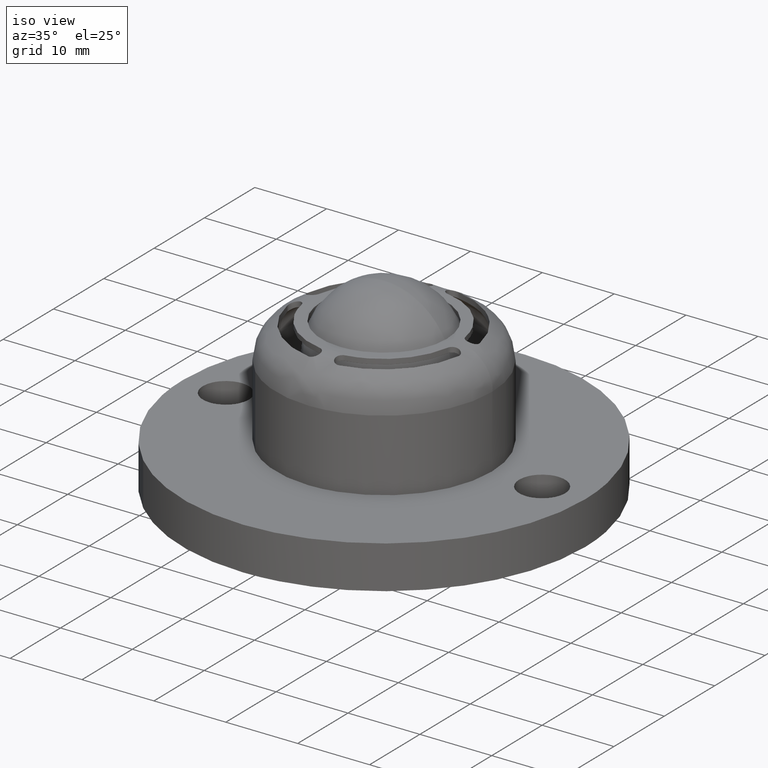
[diagram: clean part render]
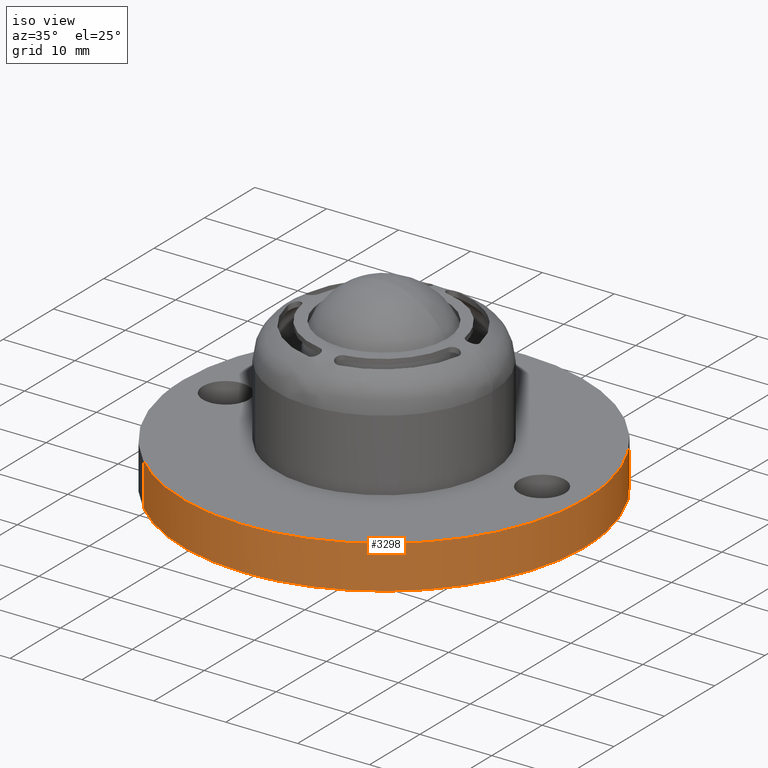
[diagram: same view with one face highlighted and labeled with its STEP entity id]
A machine part, iso view. The second image highlights one B-rep face of the part: STEP entity #3298.
In plain terms, the highlighted face is a freeform B-spline surface patch.
Its self-contained STEP definition (entity closure, byte-faithful):
#2676=CARTESIAN_POINT('',(-19.273928130856579,-20.310482377495990,6.000000000000110));
#2677=VERTEX_POINT('',#2676);
#2692=CARTESIAN_POINT('',(0.0,-28.0,6.000000000000110));
#2693=VERTEX_POINT('',#2692);
#2694=CARTESIAN_POINT('',(0.0,-28.0,6.000000000000110));
#2695=CARTESIAN_POINT('',(-1.937618741804053,-28.000296215326149,6.000000000000100));
#2696=CARTESIAN_POINT('',(-4.871546812207564,-27.694185755646568,6.000000000000157));
#2697=CARTESIAN_POINT('',(-8.674389473147631,-26.678436911998858,6.000000000000055));
#2698=CARTESIAN_POINT('',(-11.209243189368220,-25.701818853041150,6.000000000000154));
#2699=CARTESIAN_POINT('',(-13.940015960991200,-24.350002895482110,6.000000000000068));
#2700=CARTESIAN_POINT('',(-16.604358634199041,-22.644431157706610,6.000000000000163));
#2701=CARTESIAN_POINT('',(-18.470813860307640,-21.072636149730929,6.000000000000068));
#2702=CARTESIAN_POINT('',(-19.273928130856579,-20.310482377495990,6.000000000000110));
#2703=B_SPLINE_CURVE_WITH_KNOTS('',3,(#2694,#2695,#2696,#2697,#2698,#2699,#2700,#2701,#2702),.UNSPECIFIED.,.F.,.U.,(4,1,1,1,1,1,4),(5.237094E-009,5.812774562081524,8.802207740451156,11.791619310204140,13.950649581646889,17.936562622519428,21.258141466744920),.UNSPECIFIED.);
#2704=EDGE_CURVE('',#2693,#2677,#2703,.T.);
#2706=CARTESIAN_POINT('',(28.0,0.0,6.000000000000110));
#2707=VERTEX_POINT('',#2706);
#2708=CARTESIAN_POINT('',(28.0,0.0,6.000000000000110));
#2709=CARTESIAN_POINT('',(28.000076249837988,-1.374443402842602,6.000000000000105));
#2710=CARTESIAN_POINT('',(27.822531943628391,-3.779703144594035,6.000000000000131));
#2711=CARTESIAN_POINT('',(27.188107891370880,-6.869826014397530,6.000000000000088));
#2712=CARTESIAN_POINT('',(26.381429841663248,-9.499990134449954,6.000000000000124));
#2713=CARTESIAN_POINT('',(25.205217506865569,-12.364641123564359,6.000000000000084));
#2714=CARTESIAN_POINT('',(23.450359889791049,-15.462409899912069,6.000000000000176));
#2715=CARTESIAN_POINT('',(21.391879244739979,-18.150661715067589,6.000000000000097));
#2716=CARTESIAN_POINT('',(19.138923898207349,-20.517000665945499,6.000000000000112));
#2717=CARTESIAN_POINT('',(16.328139413687659,-22.882267896264018,6.000000000000114));
#2718=CARTESIAN_POINT('',(12.987948747120541,-24.912216936348859,6.000000000000108));
#2719=CARTESIAN_POINT('',(9.508591224995064,-26.403587347672520,6.000000000000117));
#2720=CARTESIAN_POINT('',(6.373189358608293,-27.333763720096499,6.000000000000088));
#2721=CARTESIAN_POINT('',(3.149763346632095,-27.882857546572680,6.000000000000195));
#2722=CARTESIAN_POINT('',(1.030828756229254,-28.000022687795880,5.999999999999764));
#2723=CARTESIAN_POINT('',(0.0,-28.0,6.000000000000110));
#2724=B_SPLINE_CURVE_WITH_KNOTS('',3,(#2708,#2709,#2710,#2711,#2712,#2713,#2714,#2715,#2716,#2717,#2718,#2719,#2720,#2721,#2722,#2723),.UNSPECIFIED.,.F.,.U.,(4,1,1,1,1,1,1,1,1,1,1,1,1,4),(0.000000013098202,4.123326911583426,7.215847821432249,9.449332906309564,12.370044910812609,16.493394751371351,20.101326401665119,22.506580174208398,26.286321359345589,31.096904363942741,34.189417934214489,37.625542341849901,40.889876448166540,43.982366145714813),.UNSPECIFIED.);
#2725=EDGE_CURVE('',#2707,#2693,#2724,.T.);
#2727=CARTESIAN_POINT('',(19.273928130856579,20.310482377495990,6.000000000000110));
#2728=VERTEX_POINT('',#2727);
#2729=CARTESIAN_POINT('',(19.273928130856579,20.310482377495990,6.000000000000110));
#2730=CARTESIAN_POINT('',(20.218340099714371,19.414351994333870,6.000000000000097));
#2731=CARTESIAN_POINT('',(21.741299842026962,17.752399066800610,6.000000000000118));
#2732=CARTESIAN_POINT('',(23.845502613352490,14.813542770108731,6.000000000000111));
#2733=CARTESIAN_POINT('',(25.375211906467630,11.998204733784631,6.000000000000092));
#2734=CARTESIAN_POINT('',(26.597326286626298,8.913794871871145,6.000000000000155));
#2735=CARTESIAN_POINT('',(27.347487526578941,6.230821918836305,5.999999999999994));
#2736=CARTESIAN_POINT('',(27.872226915211840,3.195577765189947,6.000000000000236));
#2737=CARTESIAN_POINT('',(28.000042628600781,1.183551478648408,6.000000000000031));
#2738=CARTESIAN_POINT('',(28.0,0.0,6.000000000000110));
#2739=B_SPLINE_CURVE_WITH_KNOTS('',3,(#2729,#2730,#2731,#2732,#2733,#2734,#2735,#2736,#2737,#2738),.UNSPECIFIED.,.F.,.U.,(4,1,1,1,1,1,1,4),(4.479887E-009,3.905721687693106,6.746254458179642,10.829523821688159,13.492504749528990,16.688101662953802,19.173571085126149,22.724224908936950),.UNSPECIFIED.);
#2740=EDGE_CURVE('',#2728,#2707,#2739,.T.);
#3214=CARTESIAN_POINT('',(19.273928119425101,20.310482388344049,6.150000000000116));
#3215=CARTESIAN_POINT('',(39.584410507769157,1.036554268918941,6.150000000000116));
#3216=CARTESIAN_POINT('',(20.310482388344049,-19.273928119425101,6.150000000000116));
#3217=CARTESIAN_POINT('',(1.036554268918941,-39.584410507769157,6.150000000000116));
#3218=CARTESIAN_POINT('',(-19.273928119425101,-20.310482388344049,6.150000000000116));
#3219=CARTESIAN_POINT('',(19.273928119425101,20.310482388344049,-0.153750000000109));
#3220=CARTESIAN_POINT('',(39.584410507769157,1.036554268918941,-0.153750000000109));
#3221=CARTESIAN_POINT('',(20.310482388344049,-19.273928119425101,-0.153750000000109));
#3222=CARTESIAN_POINT('',(1.036554268918941,-39.584410507769157,-0.153750000000109));
#3223=CARTESIAN_POINT('',(-19.273928119425101,-20.310482388344049,-0.153750000000109));
#3231=(BOUNDED_SURFACE()B_SPLINE_SURFACE(2,1,((#3214,#3219),(#3215,#3220),(#3216,#3221),(#3217,#3222),(#3218,#3223)),.UNSPECIFIED.,.F.,.F.,.U.)B_SPLINE_SURFACE_WITH_KNOTS((3,2,3),(2,2),(0.0,46.391918985786631,92.783837971573263),(0.0,6.303750000000226),.UNSPECIFIED.)GEOMETRIC_REPRESENTATION_ITEM()RATIONAL_B_SPLINE_SURFACE(((1.0,1.0),(0.707106781186548,0.707106781186548),(1.0,1.0),(0.707106781186548,0.707106781186548),(1.0,1.0)))REPRESENTATION_ITEM('')SURFACE());
#3232=ORIENTED_EDGE('',*,*,#2740,.T.);
#3233=ORIENTED_EDGE('',*,*,#2725,.T.);
#3234=ORIENTED_EDGE('',*,*,#2704,.T.);
#3235=CARTESIAN_POINT('',(-19.273928130718851,-20.310482377626691,-1.027302E-013));
#3236=VERTEX_POINT('',#3235);
#3237=CARTESIAN_POINT('',(-19.273928130856579,-20.310482377495990,6.000000000000110));
#3238=CARTESIAN_POINT('',(-19.273928130718851,-20.310482377626691,-1.027302E-013));
#3239=QUASI_UNIFORM_CURVE('',1,(#3237,#3238),.UNSPECIFIED.,.F.,.U.);
#3240=EDGE_CURVE('',#2677,#3236,#3239,.T.);
#3241=ORIENTED_EDGE('',*,*,#3240,.T.);
#3242=CARTESIAN_POINT('',(0.0,-28.0,-8.526513E-014));
#3243=VERTEX_POINT('',#3242);
#3244=CARTESIAN_POINT('',(0.0,-28.0,-8.526513E-014));
#3245=CARTESIAN_POINT('',(-1.273275845922414,-28.000059627824861,-8.719245E-014));
#3246=CARTESIAN_POINT('',(-3.653723669371302,-27.837324379317270,-9.054772E-014));
#3247=CARTESIAN_POINT('',(-7.407215304823903,-27.093188425474480,-9.509599E-014));
#3248=CARTESIAN_POINT('',(-10.924011618989759,-25.880121161959860,-9.857200E-014));
#3249=CARTESIAN_POINT('',(-14.135883012149760,-24.242264934068380,-1.009397E-013));
#3250=CARTESIAN_POINT('',(-16.858855168673092,-22.430059901765159,-1.023019E-013));
#3251=CARTESIAN_POINT('',(-18.470818305600929,-21.072643696408338,-1.026750E-013));
#3252=CARTESIAN_POINT('',(-19.273928130718851,-20.310482377626691,-1.027302E-013));
#3253=B_SPLINE_CURVE_WITH_KNOTS('',3,(#3244,#3245,#3246,#3247,#3248,#3249,#3250,#3251,#3252),.UNSPECIFIED.,.F.,.U.,(4,1,1,1,1,1,4),(5.234206E-009,3.819822314806416,7.141412178562240,11.459454651104700,14.947128572263340,17.936562622358760,21.258141466555099),.UNSPECIFIED.);
#3254=EDGE_CURVE('',#3243,#3236,#3253,.T.);
#3255=ORIENTED_EDGE('',*,*,#3254,.F.);
#3256=CARTESIAN_POINT('',(28.0,0.0,0.0));
#3257=VERTEX_POINT('',#3256);
#3258=CARTESIAN_POINT('',(28.0,0.0,0.0));
#3259=CARTESIAN_POINT('',(28.000232533641832,-1.832607456749873,-2.789959E-015));
#3260=CARTESIAN_POINT('',(27.689635167212309,-4.982292385528355,-8.058555E-015));
#3261=CARTESIAN_POINT('',(26.599299450177909,-8.969519843168404,-1.578961E-014));
#3262=CARTESIAN_POINT('',(25.335861846370769,-12.046327157704980,-2.239803E-014));
#3263=CARTESIAN_POINT('',(23.968484513674341,-14.567149611807590,-2.831817E-014));
#3264=CARTESIAN_POINT('',(22.063575819264720,-17.362173407831019,-3.547425E-014));
#3265=CARTESIAN_POINT('',(19.666031906154821,-20.073597446898400,-4.325312E-014));
#3266=CARTESIAN_POINT('',(16.811188763173352,-22.475652633288519,-5.125723E-014));
#3267=CARTESIAN_POINT('',(13.836837273670209,-24.423681155450470,-5.875200E-014));
#3268=CARTESIAN_POINT('',(10.436786011859279,-26.096205281006348,-6.647546E-014));
#3269=CARTESIAN_POINT('',(6.712507521395651,-27.276000760184530,-7.394237E-014));
#3270=CARTESIAN_POINT('',(3.149762356177814,-27.882856056245700,-8.029096E-014));
#3271=CARTESIAN_POINT('',(1.030828602055164,-28.000021514748330,-8.369563E-014));
#3272=CARTESIAN_POINT('',(0.0,-28.0,-8.526513E-014));
#3273=B_SPLINE_CURVE_WITH_KNOTS('',3,(#3258,#3259,#3260,#3261,#3262,#3263,#3264,#3265,#3266,#3267,#3268,#3269,#3270,#3271,#3272),.UNSPECIFIED.,.F.,.U.,(4,1,1,1,1,1,1,1,1,1,1,1,4),(0.000000013098202,5.497783715436704,9.449332906309564,12.370044910812609,15.462564266716280,18.039644025178308,22.506580174208398,26.286321359345589,29.207038563851420,33.158581557591148,37.625542341849901,40.889876448166540,43.982366145714813),.UNSPECIFIED.);
#3274=EDGE_CURVE('',#3257,#3243,#3273,.T.);
#3275=ORIENTED_EDGE('',*,*,#3274,.F.);
#3276=CARTESIAN_POINT('',(19.273928130718851,20.310482377626691,-4.362986E-014));
#3277=VERTEX_POINT('',#3276);
#3278=CARTESIAN_POINT('',(19.273928130718851,20.310482377626691,-4.362986E-014));
#3279=CARTESIAN_POINT('',(19.960750639466490,19.658730608181340,-4.161040E-014));
#3280=CARTESIAN_POINT('',(21.349906162735909,18.199632944634899,-3.731541E-014));
#3281=CARTESIAN_POINT('',(23.222774332139199,15.751650652578080,-3.080654E-014));
#3282=CARTESIAN_POINT('',(25.048077374970092,12.699337800997700,-2.346723E-014));
#3283=CARTESIAN_POINT('',(26.360018428780549,9.645703107635754,-1.690758E-014));
#3284=CARTESIAN_POINT('',(27.293648365964629,6.462576490066683,-1.073050E-014));
#3285=CARTESIAN_POINT('',(27.857202114612061,3.432288470603047,-5.345220E-015));
#3286=CARTESIAN_POINT('',(28.000041944714980,1.183551491109212,-1.768148E-015));
#3287=CARTESIAN_POINT('',(28.0,0.0,0.0));
#3288=B_SPLINE_CURVE_WITH_KNOTS('',3,(#3278,#3279,#3280,#3281,#3282,#3283,#3284,#3285,#3286,#3287),.UNSPECIFIED.,.F.,.U.,(4,1,1,1,1,1,1,4),(4.488633E-009,2.840522389574112,6.036123250519783,9.231720163970364,13.492504749644549,15.977970455373850,19.173571085287399,22.724224909126772),.UNSPECIFIED.);
#3289=EDGE_CURVE('',#3277,#3257,#3288,.T.);
#3290=ORIENTED_EDGE('',*,*,#3289,.F.);
#3291=CARTESIAN_POINT('',(19.273928130856579,20.310482377495990,6.000000000000110));
#3292=CARTESIAN_POINT('',(19.273928130718851,20.310482377626691,-4.362986E-014));
#3293=QUASI_UNIFORM_CURVE('',1,(#3291,#3292),.UNSPECIFIED.,.F.,.U.);
#3294=EDGE_CURVE('',#2728,#3277,#3293,.T.);
#3295=ORIENTED_EDGE('',*,*,#3294,.F.);
#3296=EDGE_LOOP('',(#3232,#3233,#3234,#3241,#3255,#3275,#3290,#3295));
#3297=FACE_OUTER_BOUND('',#3296,.T.);
#3298=ADVANCED_FACE('',(#3297),#3231,.T.);